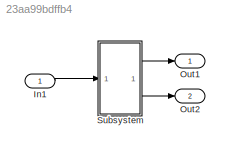
MODEL slx_23aa99bdffb4
KIND model
CONFIG AbsTol = auto
CONFIG EnableMultiTasking = off
CONFIG FixedStep = auto
CONFIG MaxStep = 0.05
CONFIG MinStep = auto
CONFIG RelTol = 1e-3
CONFIG SampleTimeConstraint = Unconstrained
CONFIG SolverName = ode45
CONFIG StartTime = 0.0
CONFIG StopTime = 150
BLOCK [Inport] In1
BLOCK [Outport] Out1
BLOCK [Outport] Out2
  Port = 2
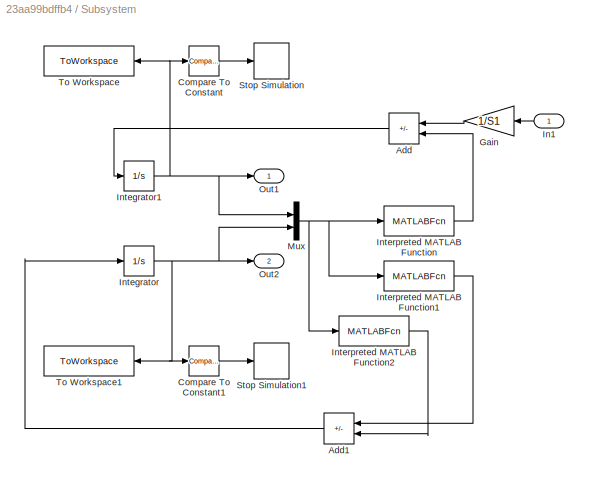
BLOCK [SubSystem] Subsystem
BLOCK [Sum] Subsystem/Add
  IconShape = rectangular
  Inputs = +-
  NameLocation = top
BLOCK [Sum] Subsystem/Add1
  IconShape = rectangular
  Inputs = +-
  NameLocation = top
BLOCK [Reference] Subsystem/Compare To Constant  REF=simulink/Logic and Bit
Operations/Compare
To Constant
  SourceBlock = simulink/Logic and Bit\nOperations/Compare\nTo Constant
  SourceType = Compare To Constant
BLOCK [Reference] Subsystem/Compare To Constant1  REF=simulink/Logic and Bit
Operations/Compare
To Constant
  SourceBlock = simulink/Logic and Bit\nOperations/Compare\nTo Constant
  SourceType = Compare To Constant
BLOCK [Gain] Subsystem/Gain
  Gain = 1/S1
  NameLocation = top
BLOCK [Inport] Subsystem/In1
  NameLocation = top
BLOCK [Integrator] Subsystem/Integrator
  InitialCondition = h2
BLOCK [Integrator] Subsystem/Integrator1
  InitialCondition = h1
BLOCK [MATLABFcn] Subsystem/Interpreted MATLAB Function
  MATLABFcn = (Swy1 * fi1 * sqrt(2*g * (u(1) - u(2)))) / S1
BLOCK [MATLABFcn] Subsystem/Interpreted MATLAB Function1
  MATLABFcn = (Swy1 * fi1 * sqrt(2*g * (u(1) - u(2)))) / S2
BLOCK [MATLABFcn] Subsystem/Interpreted MATLAB Function2
  MATLABFcn = (Swy2 * fi2 * sqrt(2 * g * u(2))) / S2
BLOCK [Mux] Subsystem/Mux
  DisplayOption = bar
  Inputs = 2
BLOCK [Outport] Subsystem/Out1
BLOCK [Outport] Subsystem/Out2
  Port = 2
BLOCK [Stop] Subsystem/Stop Simulation
BLOCK [Stop] Subsystem/Stop Simulation1
BLOCK [ToWorkspace] Subsystem/To Workspace
  FixptAsFi = on
  MaxDataPoints = inf
  NameLocation = top
  SampleTime = -1
  SaveFormat = Timeseries
  VariableName = h1
BLOCK [ToWorkspace] Subsystem/To Workspace1
  FixptAsFi = on
  MaxDataPoints = inf
  NameLocation = top
  SampleTime = -1
  SaveFormat = Timeseries
  VariableName = h2
LINE In1:1 -> Subsystem:1
LINE Subsystem/Add1:1 -> Subsystem/Integrator:1
LINE Subsystem/Add:1 -> Subsystem/Integrator1:1
LINE Subsystem/Compare To Constant1:1 -> Subsystem/Stop Simulation1:1
LINE Subsystem/Compare To Constant:1 -> Subsystem/Stop Simulation:1
LINE Subsystem/Gain:1 -> Subsystem/Add:1
LINE Subsystem/In1:1 -> Subsystem/Gain:1
NET Subsystem/Integrator1:1 -> Subsystem/Compare To Constant:1, Subsystem/Mux:1, Subsystem/Out1:1, Subsystem/To Workspace:1
NET Subsystem/Integrator:1 -> Subsystem/Compare To Constant1:1, Subsystem/Mux:2, Subsystem/Out2:1, Subsystem/To Workspace1:1
LINE Subsystem/Interpreted MATLAB Function1:1 -> Subsystem/Add1:1
LINE Subsystem/Interpreted MATLAB Function2:1 -> Subsystem/Add1:2
LINE Subsystem/Interpreted MATLAB Function:1 -> Subsystem/Add:2
NET Subsystem/Mux:1 -> Subsystem/Interpreted MATLAB Function1:1, Subsystem/Interpreted MATLAB Function2:1, Subsystem/Interpreted MATLAB Function:1
LINE Subsystem:1 -> Out1:1
LINE Subsystem:2 -> Out2:1
note: NET lines group one-source signal fan-out (src -> all destinations, sorted); 1:1 wires keep LINE
